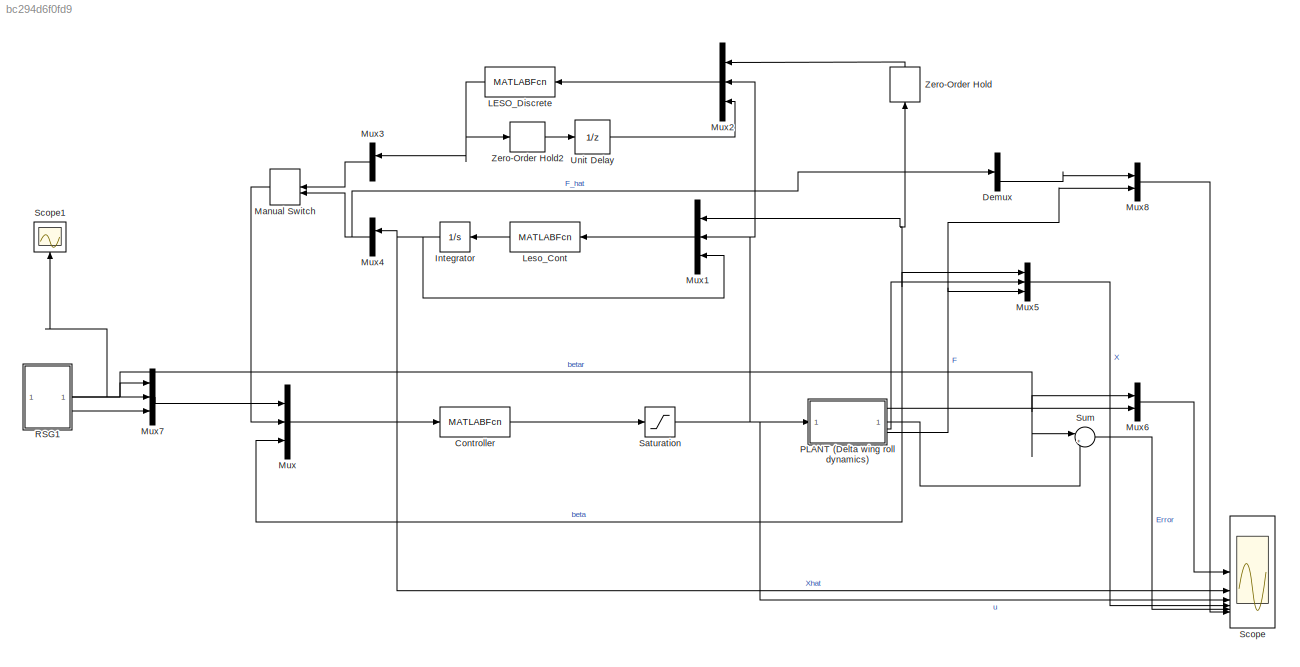
MODEL slx_bc294d6f0fd9
KIND model
CONFIG AbsTol = auto
CONFIG EnableMultiTasking = on
CONFIG FixedStep = auto
CONFIG MaxStep = 0.01
CONFIG MinStep = auto
CONFIG RelTol = 1e-3
CONFIG SampleTimeConstraint = Unconstrained
CONFIG SolverName = ode45
CONFIG StartTime = 0.0
CONFIG StopTime = 60
BLOCK [MATLABFcn]  LESO_Discrete
  MATLABFcn = leso_Discrete
  NameLocation = top
  OutputDimensions = 3
BLOCK [MATLABFcn] Controller
  MATLABFcn = outer_loop
  OutputDimensions = 1
BLOCK [Demux] Demux
  Outputs = 3
BLOCK [Integrator] Integrator
  NameLocation = top
BLOCK [MATLABFcn] Leso_Cont
  MATLABFcn = Leso_Cont
  NameLocation = top
  OutputDimensions = 3
BLOCK [ManualSwitch] Manual Switch
  CurrentSetting = 0
  NameLocation = top
BLOCK [Mux] Mux
  DisplayOption = bar
  Inputs = [3 3 1]
BLOCK [Mux] Mux1
  DisplayOption = bar
  Inputs = [1 1 3]
  NameLocation = top
BLOCK [Mux] Mux2
  DisplayOption = bar
  Inputs = [1 1 3]
  NameLocation = top
BLOCK [Mux] Mux3
  DisplayOption = bar
  Inputs = 1
  NameLocation = top
BLOCK [Mux] Mux4
  DisplayOption = bar
  Inputs = 1
  NameLocation = top
BLOCK [Mux] Mux5
  DisplayOption = bar
  Inputs = 3
BLOCK [Mux] Mux6
  DisplayOption = bar
  Inputs = 2
BLOCK [Mux] Mux7
  DisplayOption = bar
  Inputs = 3
BLOCK [Mux] Mux8
  DisplayOption = bar
  Inputs = 2
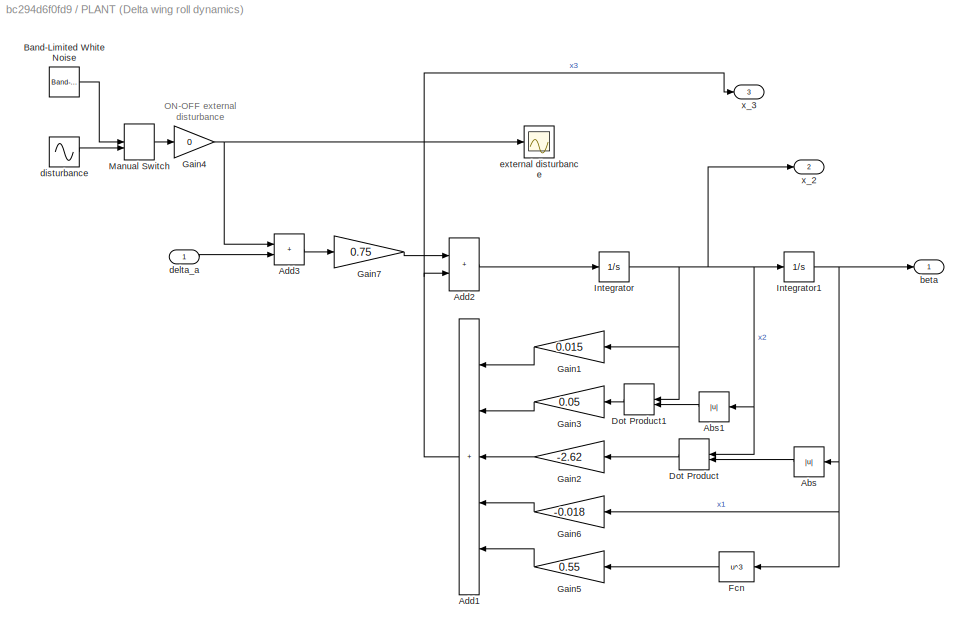
BLOCK [SubSystem] PLANT (Delta wing roll dynamics)
BLOCK [Abs] PLANT (Delta wing roll dynamics)/Abs
  NameLocation = top
  SaturateOnIntegerOverflow = off
BLOCK [Abs] PLANT (Delta wing roll dynamics)/Abs1
  NameLocation = top
  SaturateOnIntegerOverflow = off
BLOCK [Sum] PLANT (Delta wing roll dynamics)/Add1
  IconShape = rectangular
  Inputs = +++++
  NameLocation = top
BLOCK [Sum] PLANT (Delta wing roll dynamics)/Add2
  IconShape = rectangular
BLOCK [Sum] PLANT (Delta wing roll dynamics)/Add3
  IconShape = rectangular
BLOCK [Reference] PLANT (Delta wing roll dynamics)/Band-Limited White Noise  REF=simulink/Sources/Band-Limited
White Noise
  SourceBlock = simulink/Sources/Band-Limited\nWhite Noise
  SourceType = Band-Limited White Noise.
BLOCK [DotProduct] PLANT (Delta wing roll dynamics)/Dot Product
  NameLocation = top
  OutDataTypeStr = Inherit: Inherit via internal rule
BLOCK [DotProduct] PLANT (Delta wing roll dynamics)/Dot Product1
  NameLocation = top
  OutDataTypeStr = Inherit: Inherit via internal rule
BLOCK [Fcn] PLANT (Delta wing roll dynamics)/Fcn
  Expr = u^3
  NameLocation = top
BLOCK [Gain] PLANT (Delta wing roll dynamics)/Gain1
  Gain = 0.015
  NameLocation = top
BLOCK [Gain] PLANT (Delta wing roll dynamics)/Gain2
  Gain = -2.62
  NameLocation = top
BLOCK [Gain] PLANT (Delta wing roll dynamics)/Gain3
  Gain = 0.05
  NameLocation = top
BLOCK [Gain] PLANT (Delta wing roll dynamics)/Gain4
  Gain = 0
BLOCK [Gain] PLANT (Delta wing roll dynamics)/Gain5
  Gain = 0.55
  NameLocation = top
BLOCK [Gain] PLANT (Delta wing roll dynamics)/Gain6
  Gain = -0.018
  NameLocation = top
BLOCK [Gain] PLANT (Delta wing roll dynamics)/Gain7
  Gain = 0.75
BLOCK [Integrator] PLANT (Delta wing roll dynamics)/Integrator
  InitialCondition = betap0
  LowerSaturationLimit = -pi
  UpperSaturationLimit = pi
BLOCK [Integrator] PLANT (Delta wing roll dynamics)/Integrator1
  InitialCondition = betaa0
BLOCK [ManualSwitch] PLANT (Delta wing roll dynamics)/Manual Switch
BLOCK [Outport] PLANT (Delta wing roll dynamics)/beta
BLOCK [Inport] PLANT (Delta wing roll dynamics)/delta_a
BLOCK [Sin] PLANT (Delta wing roll dynamics)/disturbance
  Amplitude = 1.5
  SampleTime = 0
BLOCK [Scope] PLANT (Delta wing roll dynamics)/external disturbance
  Floating = off
  NumInputPorts = 1
  ScopeSpecificationString = Simulink.scopes.TimeScopeBlockCfg('CurrentConfiguration', extmgr.ConfigurationSet(extmgr.Configuration('Core','General UI',true),extmgr.Configuration('Core','Source UI',true),extmgr.Configuration('Sources','WiredSimulink',true,'DataLoggingVariableName','ScopeData3','DataLoggingSaveFormat','StructureWithTime','DataLoggingDecimation','1','DataLoggingDecimateData',true),extmgr.Configuration('Visuals'...<+1735ch>
BLOCK [Outport] PLANT (Delta wing roll dynamics)/x_2
  Port = 2
BLOCK [Outport] PLANT (Delta wing roll dynamics)/x_3
  Port = 3
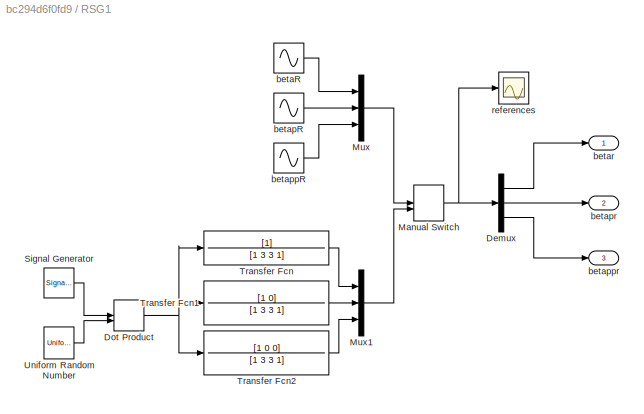
BLOCK [SubSystem] RSG1
BLOCK [Demux] RSG1/Demux
  Outputs = 3
BLOCK [DotProduct] RSG1/Dot Product
  OutDataTypeStr = Inherit: Inherit via internal rule
BLOCK [ManualSwitch] RSG1/Manual Switch
  CurrentSetting = 0
BLOCK [Mux] RSG1/Mux
  DisplayOption = bar
  Inputs = 3
BLOCK [Mux] RSG1/Mux1
  DisplayOption = bar
  Inputs = 3
BLOCK [SignalGenerator] RSG1/Signal Generator
  Frequency = 0.05
  NameLocation = top
  WaveForm = square
BLOCK [TransferFcn] RSG1/Transfer Fcn
  Denominator = [1 3 3 1]
BLOCK [TransferFcn] RSG1/Transfer Fcn1
  Denominator = [1 3 3 1]
  Numerator = [1 0]
BLOCK [TransferFcn] RSG1/Transfer Fcn2
  Denominator = [1 3 3 1]
  Numerator = [1 0 0]
BLOCK [UniformRandomNumber] RSG1/Uniform Random Number
  Maximum = 0.8*pi/2
  Minimum = -0.8*pi/2
  SampleTime = 10
BLOCK [Sin] RSG1/betaR
  Frequency = 0.5
  SampleTime = 0
BLOCK [Sin] RSG1/betapR
  Amplitude = 0.5
  Frequency = 0.5
  Phase = pi/2
  SampleTime = 0
BLOCK [Sin] RSG1/betappR
  Amplitude = -1*0.5*0.5
  Frequency = 0.5
  SampleTime = 0
BLOCK [Outport] RSG1/betappr
  Port = 3
BLOCK [Outport] RSG1/betapr
  Port = 2
BLOCK [Outport] RSG1/betar
BLOCK [Scope] RSG1/references
  Floating = off
  NumInputPorts = 1
  ScopeSpecificationString = Simulink.scopes.TimeScopeBlockCfg('CurrentConfiguration', extmgr.ConfigurationSet(extmgr.Configuration('Core','General UI',true),extmgr.Configuration('Core','Source UI',true),extmgr.Configuration('Sources','WiredSimulink',true,'DataLoggingSaveFormat','StructureWithTime','DataLoggingDecimation','1','DataLoggingDecimateData',true),extmgr.Configuration('Visuals','Time Domain',true,'SerializedDisplays...<+1636ch>
BLOCK [Saturate] Saturation
  LowerLimit = -pi
  UpperLimit = pi
BLOCK [Scope] Scope
  Floating = off
  NumInputPorts = 6
  ScopeSpecificationString = Simulink.scopes.TimeScopeBlockCfg('CurrentConfiguration', extmgr.ConfigurationSet(extmgr.Configuration('Core','General UI',true,'FigureColor',[1 1 1]),extmgr.Configuration('Core','Source UI',true),extmgr.Configuration('Sources','WiredSimulink',true,'DataLoggingVariableName','ScopeData1'),extmgr.Configuration('Visuals','Time Domain',true,'SerializedDisplays',{struct('MinYLimReal','-1.36387','MaxYLi...<+6431ch>
BLOCK [Scope] Scope1
  Floating = off
  NameLocation = right
  NumInputPorts = 1
  ScopeSpecificationString = Simulink.scopes.TimeScopeBlockCfg('CurrentConfiguration', extmgr.ConfigurationSet(extmgr.Configuration('Core','General UI',true),extmgr.Configuration('Core','Source UI',true),extmgr.Configuration('Sources','WiredSimulink',true,'DataLoggingVariableName','ScopeData2'),extmgr.Configuration('Visuals','Time Domain',true,'SerializedDisplays',{struct('MinYLimReal','-1.36333','MaxYLimReal','0.93417','YLab...<+1389ch>
BLOCK [Sum] Sum
  Inputs = |+-
BLOCK [UnitDelay] Unit Delay
  HasFrameUpgradeWarning = on
  SampleTime = Ta
BLOCK [ZeroOrderHold] Zero-Order Hold
  NameLocation = right
  SampleTime = Ta
BLOCK [ZeroOrderHold] Zero-Order Hold2
  SampleTime = Ta
ANNOTATION PLANT (Delta wing roll dynamics): ON-OFF external disturbance
NET  LESO_Discrete:1 -> Mux3:1, Zero-Order Hold2:1
LINE Controller:1 -> Saturation:1
LINE Demux:3 -> Mux8:1
NET Integrator:1 -> Mux1:3, Mux4:1, Scope:2
LINE Leso_Cont:1 -> Integrator:1
LINE Manual Switch:1 -> Mux:2
LINE Mux1:1 -> Leso_Cont:1
LINE Mux2:1 ->  LESO_Discrete:1
LINE Mux3:1 -> Manual Switch:1
NET Mux4:1 -> Demux:1, Manual Switch:2
LINE Mux5:1 -> Scope:4
LINE Mux6:1 -> Scope:1
LINE Mux7:1 -> Mux:1
LINE Mux8:1 -> Scope:6
LINE Mux:1 -> Controller:1
LINE PLANT (Delta wing roll dynamics)/Abs1:1 -> PLANT (Delta wing roll dynamics)/Dot Product1:2
LINE PLANT (Delta wing roll dynamics)/Abs:1 -> PLANT (Delta wing roll dynamics)/Dot Product:2
NET PLANT (Delta wing roll dynamics)/Add1:1 -> PLANT (Delta wing roll dynamics)/Add2:2, PLANT (Delta wing roll dynamics)/x_3:1
LINE PLANT (Delta wing roll dynamics)/Add2:1 -> PLANT (Delta wing roll dynamics)/Integrator:1
LINE PLANT (Delta wing roll dynamics)/Add3:1 -> PLANT (Delta wing roll dynamics)/Gain7:1
LINE PLANT (Delta wing roll dynamics)/Band-Limited White Noise:1 -> PLANT (Delta wing roll dynamics)/Manual Switch:1
LINE PLANT (Delta wing roll dynamics)/Dot Product1:1 -> PLANT (Delta wing roll dynamics)/Gain3:1
LINE PLANT (Delta wing roll dynamics)/Dot Product:1 -> PLANT (Delta wing roll dynamics)/Gain2:1
LINE PLANT (Delta wing roll dynamics)/Fcn:1 -> PLANT (Delta wing roll dynamics)/Gain5:1
LINE PLANT (Delta wing roll dynamics)/Gain1:1 -> PLANT (Delta wing roll dynamics)/Add1:1
LINE PLANT (Delta wing roll dynamics)/Gain2:1 -> PLANT (Delta wing roll dynamics)/Add1:3
LINE PLANT (Delta wing roll dynamics)/Gain3:1 -> PLANT (Delta wing roll dynamics)/Add1:2
NET PLANT (Delta wing roll dynamics)/Gain4:1 -> PLANT (Delta wing roll dynamics)/Add3:1, PLANT (Delta wing roll dynamics)/external disturbance:1
LINE PLANT (Delta wing roll dynamics)/Gain5:1 -> PLANT (Delta wing roll dynamics)/Add1:5
LINE PLANT (Delta wing roll dynamics)/Gain6:1 -> PLANT (Delta wing roll dynamics)/Add1:4
LINE PLANT (Delta wing roll dynamics)/Gain7:1 -> PLANT (Delta wing roll dynamics)/Add2:1
NET PLANT (Delta wing roll dynamics)/Integrator1:1 -> PLANT (Delta wing roll dynamics)/Abs:1, PLANT (Delta wing roll dynamics)/Fcn:1, PLANT (Delta wing roll dynamics)/Gain6:1, PLANT (Delta wing roll dynamics)/beta:1
NET PLANT (Delta wing roll dynamics)/Integrator:1 -> PLANT (Delta wing roll dynamics)/Abs1:1, PLANT (Delta wing roll dynamics)/Dot Product1:1, PLANT (Delta wing roll dynamics)/Dot Product:1, PLANT (Delta wing roll dynamics)/Gain1:1, PLANT (Delta wing roll dynamics)/Integrator1:1, PLANT (Delta wing roll dynamics)/x_2:1
LINE PLANT (Delta wing roll dynamics)/Manual Switch:1 -> PLANT (Delta wing roll dynamics)/Gain4:1
LINE PLANT (Delta wing roll dynamics)/delta_a:1 -> PLANT (Delta wing roll dynamics)/Add3:2
LINE PLANT (Delta wing roll dynamics)/disturbance:1 -> PLANT (Delta wing roll dynamics)/Manual Switch:2
NET PLANT (Delta wing roll dynamics):1 -> Mux1:1, Mux5:1, Mux6:2, Mux:3, Sum:2, Zero-Order Hold:1
LINE PLANT (Delta wing roll dynamics):2 -> Mux5:2
NET PLANT (Delta wing roll dynamics):3 -> Mux5:3, Mux8:2
LINE RSG1/Demux:1 -> RSG1/betar:1
LINE RSG1/Demux:2 -> RSG1/betapr:1
LINE RSG1/Demux:3 -> RSG1/betappr:1
NET RSG1/Dot Product:1 -> RSG1/Transfer Fcn1:1, RSG1/Transfer Fcn2:1, RSG1/Transfer Fcn:1
NET RSG1/Manual Switch:1 -> RSG1/Demux:1, RSG1/references:1
LINE RSG1/Mux1:1 -> RSG1/Manual Switch:2
LINE RSG1/Mux:1 -> RSG1/Manual Switch:1
LINE RSG1/Signal Generator:1 -> RSG1/Dot Product:1
LINE RSG1/Transfer Fcn1:1 -> RSG1/Mux1:2
LINE RSG1/Transfer Fcn2:1 -> RSG1/Mux1:3
LINE RSG1/Transfer Fcn:1 -> RSG1/Mux1:1
LINE RSG1/Uniform Random Number:1 -> RSG1/Dot Product:2
LINE RSG1/betaR:1 -> RSG1/Mux:1
LINE RSG1/betapR:1 -> RSG1/Mux:2
LINE RSG1/betappR:1 -> RSG1/Mux:3
NET RSG1:1 -> Mux6:1, Mux7:1, Scope1:1, Sum:1
LINE RSG1:2 -> Mux7:2
LINE RSG1:3 -> Mux7:3
NET Saturation:1 -> Mux1:2, Mux2:2, PLANT (Delta wing roll dynamics):1, Scope:3
LINE Sum:1 -> Scope:5
LINE Unit Delay:1 -> Mux2:3
LINE Zero-Order Hold2:1 -> Unit Delay:1
LINE Zero-Order Hold:1 -> Mux2:1
note: NET lines group one-source signal fan-out (src -> all destinations, sorted); 1:1 wires keep LINE
